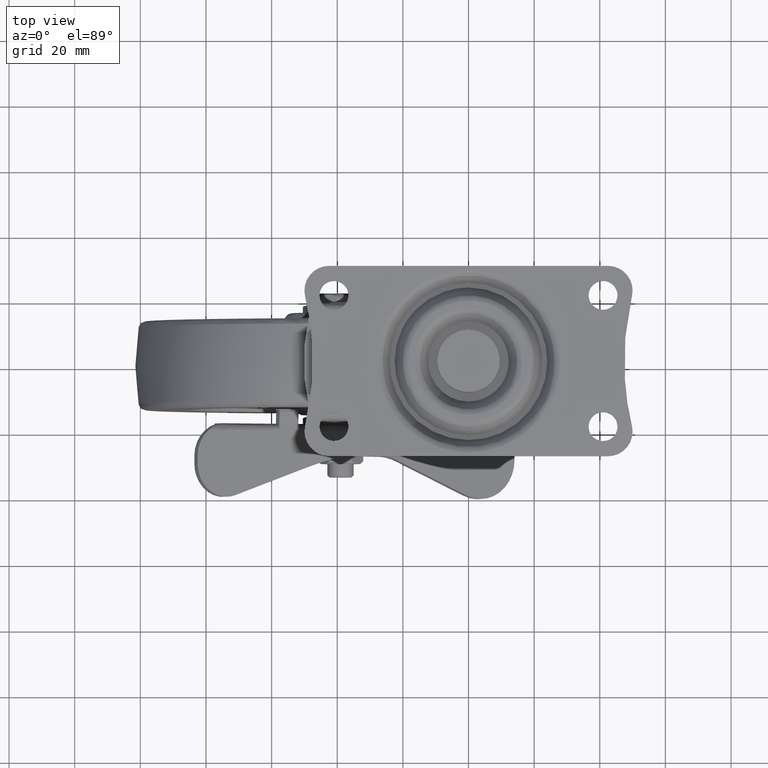
[diagram: clean part render]
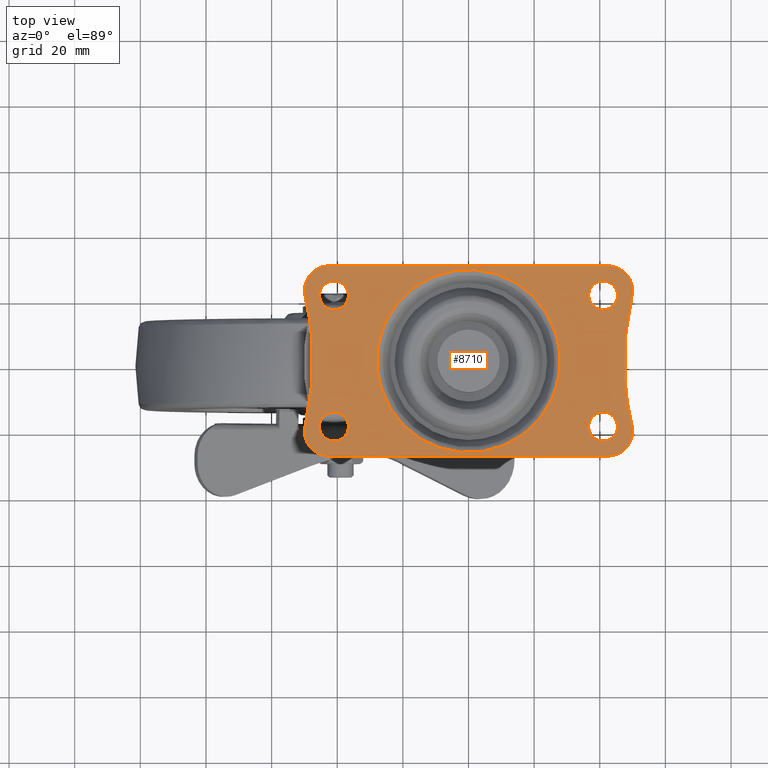
[diagram: same view with one face highlighted and labeled with its STEP entity id]
A machine part, top view. The second image highlights one B-rep face of the part: STEP entity #8710.
In plain terms, the highlighted face is a freeform B-spline surface patch.
Its self-contained STEP definition (entity closure, byte-faithful):
#6863=CARTESIAN_POINT('',(-44.191646626339647,16.971240765977491,1.999999999968882));
#6864=VERTEX_POINT('',#6863);
#6865=CARTESIAN_POINT('',(-40.999995359596333,15.599999900002450,2.0));
#6866=VERTEX_POINT('',#6865);
#6867=CARTESIAN_POINT('',(-44.191646626339647,16.971240765977491,1.999999999968882));
#6868=CARTESIAN_POINT('',(-43.961235314722451,16.728365491330809,1.999999999971126));
#6869=CARTESIAN_POINT('',(-43.415969586831231,16.271503236172990,1.999999999976445));
#6870=CARTESIAN_POINT('',(-42.338951381846186,15.742523104143819,1.999999999986951));
#6871=CARTESIAN_POINT('',(-41.483611512215937,15.599680009546010,1.999999999995282));
#6872=CARTESIAN_POINT('',(-40.999995359596333,15.599999900002450,2.0));
#6873=B_SPLINE_CURVE_WITH_KNOTS('',3,(#6867,#6868,#6869,#6870,#6871,#6872),.UNSPECIFIED.,.F.,.U.,(4,1,1,4),(0.000000129538949,1.004362962533802,2.120273938149728,3.571043816610418),.UNSPECIFIED.);
#6874=EDGE_CURVE('',#6864,#6866,#6873,.T.);
#6876=CARTESIAN_POINT('',(-36.599999900000000,20.0,2.0));
#6877=VERTEX_POINT('',#6876);
#6878=CARTESIAN_POINT('',(-40.999995359596333,15.599999900002450,2.0));
#6879=CARTESIAN_POINT('',(-40.423922617766792,15.599331991319540,2.000000000000008));
#6880=CARTESIAN_POINT('',(-39.524484246894261,15.779375252450720,1.999999999999987));
#6881=CARTESIAN_POINT('',(-38.540924791815407,16.320911521973748,2.000000000000016));
#6882=CARTESIAN_POINT('',(-37.843375976581221,16.893370175453480,1.999999999999981));
#6883=CARTESIAN_POINT('',(-37.198973422651846,17.678282236987311,2.000000000000022));
#6884=CARTESIAN_POINT('',(-36.712441952868318,18.776124843531910,1.999999999999999));
#6885=CARTESIAN_POINT('',(-36.599883324859860,19.604031389509959,2.000000000000001));
#6886=CARTESIAN_POINT('',(-36.599999900000000,20.0,2.0));
#6887=B_SPLINE_CURVE_WITH_KNOTS('',3,(#6878,#6879,#6880,#6881,#6882,#6883,#6884,#6885,#6886),.UNSPECIFIED.,.F.,.U.,(4,1,1,1,1,1,4),(0.000000460146259,1.727919049664438,2.699934183085161,3.347906009620093,4.427776727025464,5.723763383410947,6.911674816714598),.UNSPECIFIED.);
#6888=EDGE_CURVE('',#6866,#6877,#6887,.T.);
#6890=CARTESIAN_POINT('',(-37.808353373660353,23.028759234022509,1.999999999968882));
#6891=VERTEX_POINT('',#6890);
#6892=CARTESIAN_POINT('',(-36.599999900000000,20.0,2.0));
#6893=CARTESIAN_POINT('',(-36.599660215936602,20.522020335984472,1.999999999994639));
#6894=CARTESIAN_POINT('',(-36.800517970858103,21.635222263782779,1.999999999983197));
#6895=CARTESIAN_POINT('',(-37.400599769860648,22.600071287989550,1.999999999973289));
#6896=CARTESIAN_POINT('',(-37.808353373660353,23.028759234022509,1.999999999968882));
#6897=B_SPLINE_CURVE_WITH_KNOTS('',3,(#6892,#6893,#6894,#6895,#6896),.UNSPECIFIED.,.F.,.U.,(4,1,4),(0.000000125255836,1.565958961991485,3.340637922588658),.UNSPECIFIED.);
#6898=EDGE_CURVE('',#6877,#6891,#6897,.T.);
#6967=CARTESIAN_POINT('',(-45.400000100000007,20.0,2.0));
#6968=VERTEX_POINT('',#6967);
#6969=CARTESIAN_POINT('',(-45.400000100000007,20.0,2.0));
#6970=CARTESIAN_POINT('',(-45.400221511531832,19.547603577149410,1.999999999995352));
#6971=CARTESIAN_POINT('',(-45.275474447805280,18.747380211655621,1.999999999987130));
#6972=CARTESIAN_POINT('',(-44.810909382234570,17.726764749346529,1.999999999976644));
#6973=CARTESIAN_POINT('',(-44.407265641416863,17.198380396016809,1.999999999971214));
#6974=CARTESIAN_POINT('',(-44.191646626339647,16.971240765977491,1.999999999968882));
#6975=B_SPLINE_CURVE_WITH_KNOTS('',3,(#6969,#6970,#6971,#6972,#6973,#6974),.UNSPECIFIED.,.F.,.U.,(4,1,1,4),(0.000000125255855,1.357158161508154,2.401079657008411,3.340637922588672),.UNSPECIFIED.);
#6976=EDGE_CURVE('',#6968,#6864,#6975,.T.);
#7012=CARTESIAN_POINT('',(-41.000004640403688,24.400000099997548,2.0));
#7013=VERTEX_POINT('',#7012);
#7014=CARTESIAN_POINT('',(-37.808353373660353,23.028759234022509,1.999999999968882));
#7015=CARTESIAN_POINT('',(-38.243109330103223,23.488136943758889,1.999999999973118));
#7016=CARTESIAN_POINT('',(-39.252078322513412,24.170421980182098,1.999999999982962));
#7017=CARTESIAN_POINT('',(-40.441962493426288,24.400525060441819,1.999999999994558));
#7018=CARTESIAN_POINT('',(-41.000004640403688,24.400000099997548,2.0));
#7019=B_SPLINE_CURVE_WITH_KNOTS('',3,(#7014,#7015,#7016,#7017,#7018),.UNSPECIFIED.,.F.,.U.,(4,1,4),(0.000000129538670,1.897087739368949,3.571043816610434),.UNSPECIFIED.);
#7020=EDGE_CURVE('',#6891,#7013,#7019,.T.);
#7022=CARTESIAN_POINT('',(-41.000004640403688,24.400000099997548,2.0));
#7023=CARTESIAN_POINT('',(-41.576048479000022,24.400591435463319,1.999999999999997));
#7024=CARTESIAN_POINT('',(-42.547524523635659,24.206347561044382,2.000000000000003));
#7025=CARTESIAN_POINT('',(-43.645874076096632,23.565954302906182,1.999999999999997));
#7026=CARTESIAN_POINT('',(-44.484332436499407,22.767891996985220,2.000000000000004));
#7027=CARTESIAN_POINT('',(-45.192012298299922,21.619583956057610,1.999999999999989));
#7028=CARTESIAN_POINT('',(-45.400609845654081,20.576025958989351,2.000000000000009));
#7029=CARTESIAN_POINT('',(-45.400000100000007,20.0,2.0));
#7030=B_SPLINE_CURVE_WITH_KNOTS('',3,(#7022,#7023,#7024,#7025,#7026,#7027,#7028,#7029),.UNSPECIFIED.,.F.,.U.,(4,1,1,1,1,4),(0.000000460136149,1.727919049657275,2.915873930165517,3.779741512302285,5.183756225166462,6.911674816714668),.UNSPECIFIED.);
#7031=EDGE_CURVE('',#7013,#6968,#7030,.T.);
#7054=CARTESIAN_POINT('',(-44.191646626339647,-23.028759234022509,1.999999999968882));
#7055=VERTEX_POINT('',#7054);
#7056=CARTESIAN_POINT('',(-40.999995359596340,-24.400000099997548,2.0));
#7057=VERTEX_POINT('',#7056);
#7058=CARTESIAN_POINT('',(-44.191646626339647,-23.028759234022509,1.999999999968882));
#7059=CARTESIAN_POINT('',(-43.910077149045343,-23.325659288548412,1.999999999971626));
#7060=CARTESIAN_POINT('',(-43.292735522749354,-23.816610649248020,1.999999999977649));
#7061=CARTESIAN_POINT('',(-42.190242142628513,-24.290255093360120,1.999999999988392));
#7062=CARTESIAN_POINT('',(-41.409191854867558,-24.400155614364241,1.999999999996015));
#7063=CARTESIAN_POINT('',(-40.999995359596340,-24.400000099997548,2.0));
#7064=B_SPLINE_CURVE_WITH_KNOTS('',3,(#7058,#7059,#7060,#7061,#7062,#7063),.UNSPECIFIED.,.F.,.U.,(4,1,1,4),(0.000000129539464,1.227551161257772,2.343492784761684,3.571043816610414),.UNSPECIFIED.);
#7065=EDGE_CURVE('',#7055,#7057,#7064,.T.);
#7067=CARTESIAN_POINT('',(-36.599999900000000,-20.0,2.0));
#7068=VERTEX_POINT('',#7067);
#7069=CARTESIAN_POINT('',(-40.999995359596340,-24.400000099997548,2.0));
#7070=CARTESIAN_POINT('',(-40.604020143094132,-24.400141248669190,2.0));
#7071=CARTESIAN_POINT('',(-39.848166653534307,-24.297212129517298,2.0));
#7072=CARTESIAN_POINT('',(-38.675172635750457,-23.811736003103078,2.000000000000002));
#7073=CARTESIAN_POINT('',(-37.771588425417228,-23.070165803609541,1.999999999999998));
#7074=CARTESIAN_POINT('',(-37.167829671779259,-22.212299670192198,2.000000000000004));
#7075=CARTESIAN_POINT('',(-36.731366590510639,-21.259710259592190,1.999999999999993));
#7076=CARTESIAN_POINT('',(-36.599619817956643,-20.504027489536021,1.999999999999997));
#7077=CARTESIAN_POINT('',(-36.599999900000000,-20.0,2.0));
#7078=B_SPLINE_CURVE_WITH_KNOTS('',3,(#7069,#7070,#7071,#7072,#7073,#7074,#7075,#7076,#7077),.UNSPECIFIED.,.F.,.U.,(4,1,1,1,1,1,4),(0.000000460142762,1.187911892418697,2.267926207293846,3.779741512305171,4.643749068792261,5.399748950830405,6.911674816714607),.UNSPECIFIED.);
#7079=EDGE_CURVE('',#7057,#7068,#7078,.T.);
#7081=CARTESIAN_POINT('',(-37.808353373660353,-16.971240765977491,1.999999999968882));
#7082=VERTEX_POINT('',#7081);
#7083=CARTESIAN_POINT('',(-36.599999900000000,-20.0,2.0));
#7084=CARTESIAN_POINT('',(-36.599576135626677,-19.477965254655579,1.999999999994633));
#7085=CARTESIAN_POINT('',(-36.800646102745709,-18.364803885605319,1.999999999983210));
#7086=CARTESIAN_POINT('',(-37.400551592579014,-17.399918039219560,1.999999999973283));
#7087=CARTESIAN_POINT('',(-37.808353373660353,-16.971240765977491,1.999999999968882));
#7088=B_SPLINE_CURVE_WITH_KNOTS('',3,(#7083,#7084,#7085,#7086,#7087),.UNSPECIFIED.,.F.,.U.,(4,1,4),(0.000000125254986,1.565958961991247,3.340637922588661),.UNSPECIFIED.);
#7089=EDGE_CURVE('',#7068,#7082,#7088,.T.);
#7157=CARTESIAN_POINT('',(-45.400000100000007,-20.0,2.0));
#7158=VERTEX_POINT('',#7157);
#7159=CARTESIAN_POINT('',(-45.400000100000007,-20.0,2.0));
#7160=CARTESIAN_POINT('',(-45.400432499681962,-20.522032143060439,1.999999999994634));
#7161=CARTESIAN_POINT('',(-45.199320862115698,-21.635195801872548,1.999999999983205));
#7162=CARTESIAN_POINT('',(-44.599484660652983,-22.600097323028582,1.999999999973283));
#7163=CARTESIAN_POINT('',(-44.191646626339647,-23.028759234022509,1.999999999968882));
#7164=B_SPLINE_CURVE_WITH_KNOTS('',3,(#7159,#7160,#7161,#7162,#7163),.UNSPECIFIED.,.F.,.U.,(4,1,4),(0.000000125256259,1.565958961991748,3.340637922588685),.UNSPECIFIED.);
#7165=EDGE_CURVE('',#7158,#7055,#7164,.T.);
#7200=CARTESIAN_POINT('',(-41.000004640403688,-15.599999900002450,2.0));
#7201=VERTEX_POINT('',#7200);
#7202=CARTESIAN_POINT('',(-37.808353373660353,-16.971240765977491,1.999999999968882));
#7203=CARTESIAN_POINT('',(-38.141064330219997,-16.620284587290652,1.999999999972128));
#7204=CARTESIAN_POINT('',(-38.833370511125651,-16.098020732296909,1.999999999978875));
#7205=CARTESIAN_POINT('',(-39.958501875786901,-15.681015891984201,1.999999999989850));
#7206=CARTESIAN_POINT('',(-40.665226600029420,-15.599945625704761,1.999999999996732));
#7207=CARTESIAN_POINT('',(-41.000004640403688,-15.599999900002450,2.0));
#7208=B_SPLINE_CURVE_WITH_KNOTS('',3,(#7202,#7203,#7204,#7205,#7206,#7207),.UNSPECIFIED.,.F.,.U.,(4,1,1,4),(0.000000129539557,1.450770007751548,2.566680983419448,3.571043816610432),.UNSPECIFIED.);
#7209=EDGE_CURVE('',#7082,#7201,#7208,.T.);
#7211=CARTESIAN_POINT('',(-41.000004640403688,-15.599999900002450,2.0));
#7212=CARTESIAN_POINT('',(-41.395974270479172,-15.599880437681239,2.000000000000003));
#7213=CARTESIAN_POINT('',(-42.223858273781268,-15.712479572827011,1.999999999999998));
#7214=CARTESIAN_POINT('',(-43.454966348116173,-16.257781026952081,2.000000000000004));
#7215=CARTESIAN_POINT('',(-44.402190152291539,-17.116555064008349,2.0));
#7216=CARTESIAN_POINT('',(-45.181170020417227,-18.380904636055220,1.999999999999995));
#7217=CARTESIAN_POINT('',(-45.401080787029940,-19.351803799562941,1.999999999999994));
#7218=CARTESIAN_POINT('',(-45.400000100000007,-20.0,2.0));
#7219=B_SPLINE_CURVE_WITH_KNOTS('',3,(#7211,#7212,#7213,#7214,#7215,#7216,#7217,#7218),.UNSPECIFIED.,.F.,.U.,(4,1,1,1,1,4),(0.000000460144575,1.187911892420241,2.483898544749976,3.995801355097980,4.967763505593855,6.911674816714586),.UNSPECIFIED.);
#7220=EDGE_CURVE('',#7201,#7158,#7219,.T.);
#7243=CARTESIAN_POINT('',(37.808353373660353,16.971240765977491,1.999999999968882));
#7244=VERTEX_POINT('',#7243);
#7245=CARTESIAN_POINT('',(41.000004640403667,15.599999900002450,2.0));
#7246=VERTEX_POINT('',#7245);
#7247=CARTESIAN_POINT('',(37.808353373660353,16.971240765977491,1.999999999968882));
#7248=CARTESIAN_POINT('',(38.089903390340332,16.674310180703589,1.999999999971627));
#7249=CARTESIAN_POINT('',(38.648500170168887,16.230226123371409,1.999999999977074));
#7250=CARTESIAN_POINT('',(39.735461967824833,15.730147709289220,1.999999999987672));
#7251=CARTESIAN_POINT('',(40.516378279823797,15.599685612556080,1.999999999995286));
#7252=CARTESIAN_POINT('',(41.000004640403667,15.599999900002450,2.0));
#7253=B_SPLINE_CURVE_WITH_KNOTS('',3,(#7247,#7248,#7249,#7250,#7251,#7252),.UNSPECIFIED.,.F.,.U.,(4,1,1,4),(0.000000129538852,1.227551161257483,2.120273938149941,3.571043816610426),.UNSPECIFIED.);
#7254=EDGE_CURVE('',#7244,#7246,#7253,.T.);
#7256=CARTESIAN_POINT('',(45.400000100000007,20.0,2.0));
#7257=VERTEX_POINT('',#7256);
#7258=CARTESIAN_POINT('',(41.000004640403667,15.599999900002450,2.0));
#7259=CARTESIAN_POINT('',(41.576071845699140,15.599392930738150,2.000000000000001));
#7260=CARTESIAN_POINT('',(42.475490195610213,15.779346738342420,2.0));
#7261=CARTESIAN_POINT('',(43.713067453243497,16.460453464487539,1.999999999999999));
#7262=CARTESIAN_POINT('',(44.487938650094037,17.235221887885370,2.000000000000003));
#7263=CARTESIAN_POINT('',(45.197463393300161,18.452864674061370,1.999999999999996));
#7264=CARTESIAN_POINT('',(45.401053393963537,19.351784646075320,2.0));
#7265=CARTESIAN_POINT('',(45.400000100000007,20.0,2.0));
#7266=B_SPLINE_CURVE_WITH_KNOTS('',3,(#7258,#7259,#7260,#7261,#7262,#7263,#7264,#7265),.UNSPECIFIED.,.F.,.U.,(4,1,1,1,1,4),(0.000000460139980,1.727919049659939,2.699934183081793,4.211741092349952,4.967763505592465,6.911674816714671),.UNSPECIFIED.);
#7267=EDGE_CURVE('',#7246,#7257,#7266,.T.);
#7269=CARTESIAN_POINT('',(44.191646626339647,23.028759234022509,1.999999999968882));
#7270=VERTEX_POINT('',#7269);
#7271=CARTESIAN_POINT('',(45.400000100000007,20.0,2.0));
#7272=CARTESIAN_POINT('',(45.400700293458797,20.591649134151741,1.999999999993928));
#7273=CARTESIAN_POINT('',(45.171770642672449,21.704557294880662,1.999999999982478));
#7274=CARTESIAN_POINT('',(44.551254220040121,22.650351881443399,1.999999999972773));
#7275=CARTESIAN_POINT('',(44.191646626339647,23.028759234022509,1.999999999968882));
#7276=B_SPLINE_CURVE_WITH_KNOTS('',3,(#7271,#7272,#7273,#7274,#7275),.UNSPECIFIED.,.F.,.U.,(4,1,4),(0.000000125256034,1.774679085938028,3.340637922588673),.UNSPECIFIED.);
#7277=EDGE_CURVE('',#7257,#7270,#7276,.T.);
#7345=CARTESIAN_POINT('',(36.599999900000000,20.0,2.0));
#7346=VERTEX_POINT('',#7345);
#7347=CARTESIAN_POINT('',(36.599999900000000,20.0,2.0));
#7348=CARTESIAN_POINT('',(36.599627666632891,19.477975029782311,1.999999999994643));
#7349=CARTESIAN_POINT('',(36.800564976584887,18.364787167086831,1.999999999983188));
#7350=CARTESIAN_POINT('',(37.400581938989632,17.399922938285702,1.999999999973296));
#7351=CARTESIAN_POINT('',(37.808353373660353,16.971240765977491,1.999999999968882));
#7352=B_SPLINE_CURVE_WITH_KNOTS('',3,(#7347,#7348,#7349,#7350,#7351),.UNSPECIFIED.,.F.,.U.,(4,1,4),(0.000000125256040,1.565958961991678,3.340637922588660),.UNSPECIFIED.);
#7353=EDGE_CURVE('',#7346,#7244,#7352,.T.);
#7389=CARTESIAN_POINT('',(40.999995359596319,24.400000099997548,2.0));
#7390=VERTEX_POINT('',#7389);
#7391=CARTESIAN_POINT('',(44.191646626339647,23.028759234022509,1.999999999968882));
#7392=CARTESIAN_POINT('',(43.858972200137437,23.379793116424430,1.999999999972127));
#7393=CARTESIAN_POINT('',(43.226780187222730,23.856419398200231,1.999999999978286));
#7394=CARTESIAN_POINT('',(42.115836255245611,24.300690841448649,1.999999999989125));
#7395=CARTESIAN_POINT('',(41.409180820228762,24.400135621187751,1.999999999996009));
#7396=CARTESIAN_POINT('',(40.999995359596319,24.400000099997548,2.0));
#7397=B_SPLINE_CURVE_WITH_KNOTS('',3,(#7391,#7392,#7393,#7394,#7395,#7396),.UNSPECIFIED.,.F.,.U.,(4,1,1,4),(0.000000129538840,1.450770007751356,2.343492784761530,3.571043816610422),.UNSPECIFIED.);
#7398=EDGE_CURVE('',#7270,#7390,#7397,.T.);
#7400=CARTESIAN_POINT('',(40.999995359596319,24.400000099997548,2.0));
#7401=CARTESIAN_POINT('',(40.423978668905541,24.400583771724019,2.000000000000003));
#7402=CARTESIAN_POINT('',(39.380394549340977,24.192064626751570,1.999999999999998));
#7403=CARTESIAN_POINT('',(38.232097932742668,23.484310206190919,2.000000000000003));
#7404=CARTESIAN_POINT('',(37.508912970643749,22.724439651086140,2.000000000000001));
#7405=CARTESIAN_POINT('',(37.005724400227187,21.929939783692880,2.000000000000003));
#7406=CARTESIAN_POINT('',(36.675824698283897,21.007927131696270,1.999999999999998));
#7407=CARTESIAN_POINT('',(36.599955471449107,20.323972178975229,2.0));
#7408=CARTESIAN_POINT('',(36.599999900000000,20.0,2.0));
#7409=B_SPLINE_CURVE_WITH_KNOTS('',3,(#7400,#7401,#7402,#7403,#7404,#7405,#7406,#7407,#7408),.UNSPECIFIED.,.F.,.U.,(4,1,1,1,1,1,4),(0.000000460141826,1.727919049661032,3.131933760528388,3.995801355096208,4.859759915722637,5.939735721905261,6.911674816714625),.UNSPECIFIED.);
#7410=EDGE_CURVE('',#7390,#7346,#7409,.T.);
#7433=CARTESIAN_POINT('',(37.808353373660353,-23.028759234022509,1.999999999968882));
#7434=VERTEX_POINT('',#7433);
#7435=CARTESIAN_POINT('',(41.000004640403667,-24.400000099997548,2.0));
#7436=VERTEX_POINT('',#7435);
#7437=CARTESIAN_POINT('',(37.808353373660353,-23.028759234022509,1.999999999968882));
#7438=CARTESIAN_POINT('',(38.192102529284107,-23.433911584171380,1.999999999972626));
#7439=CARTESIAN_POINT('',(39.178077086375907,-24.138627428111668,1.999999999982232));
#7440=CARTESIAN_POINT('',(40.367517116680851,-24.400853777735659,1.999999999993834));
#7441=CARTESIAN_POINT('',(41.000004640403667,-24.400000099997548,2.0));
#7442=B_SPLINE_CURVE_WITH_KNOTS('',3,(#7437,#7438,#7439,#7440,#7441),.UNSPECIFIED.,.F.,.U.,(4,1,4),(0.000000129537069,1.673956206783090,3.571043816610411),.UNSPECIFIED.);
#7443=EDGE_CURVE('',#7434,#7436,#7442,.T.);
#7445=CARTESIAN_POINT('',(45.400000100000007,-20.0,2.0));
#7446=VERTEX_POINT('',#7445);
#7447=CARTESIAN_POINT('',(41.000004640403667,-24.400000099997548,2.0));
#7448=CARTESIAN_POINT('',(41.648123677211238,-24.400988490607158,1.999999999999999));
#7449=CARTESIAN_POINT('',(42.763170850110697,-24.148829918783129,2.000000000000004));
#7450=CARTESIAN_POINT('',(44.116055380937432,-23.220651284664559,1.999999999999994));
#7451=CARTESIAN_POINT('',(44.921228312130822,-22.134967331738430,2.000000000000012));
#7452=CARTESIAN_POINT('',(45.324128686437717,-21.007898973175980,1.999999999999994));
#7453=CARTESIAN_POINT('',(45.400045079172862,-20.323971836244990,2.000000000000001));
#7454=CARTESIAN_POINT('',(45.400000100000007,-20.0,2.0));
#7455=B_SPLINE_CURVE_WITH_KNOTS('',3,(#7447,#7448,#7449,#7450,#7451,#7452,#7453,#7454),.UNSPECIFIED.,.F.,.U.,(4,1,1,1,1,4),(0.000000460140767,1.943911772386969,3.347906009618380,4.859759915722920,5.939735721905360,6.911674816714633),.UNSPECIFIED.);
#7456=EDGE_CURVE('',#7436,#7446,#7455,.T.);
#7458=CARTESIAN_POINT('',(44.191646626339647,-16.971240765977491,1.999999999968882));
#7459=VERTEX_POINT('',#7458);
#7460=CARTESIAN_POINT('',(45.400000100000007,-20.0,2.0));
#7461=CARTESIAN_POINT('',(45.400221511531832,-19.547603577149410,1.999999999995352));
#7462=CARTESIAN_POINT('',(45.275474447805280,-18.747380211655621,1.999999999987130));
#7463=CARTESIAN_POINT('',(44.810909382234570,-17.726764749346529,1.999999999976644));
#7464=CARTESIAN_POINT('',(44.407265641416863,-17.198380396016809,1.999999999971214));
#7465=CARTESIAN_POINT('',(44.191646626339647,-16.971240765977491,1.999999999968882));
#7466=B_SPLINE_CURVE_WITH_KNOTS('',3,(#7460,#7461,#7462,#7463,#7464,#7465),.UNSPECIFIED.,.F.,.U.,(4,1,1,4),(0.000000125255855,1.357158161508154,2.401079657008411,3.340637922588672),.UNSPECIFIED.);
#7467=EDGE_CURVE('',#7446,#7459,#7466,.T.);
#7536=CARTESIAN_POINT('',(36.599999900000000,-20.0,2.0));
#7537=VERTEX_POINT('',#7536);
#7538=CARTESIAN_POINT('',(36.599999900000000,-20.0,2.0));
#7539=CARTESIAN_POINT('',(36.599626234465632,-20.522024989662292,1.999999999994637));
#7540=CARTESIAN_POINT('',(36.800570956135452,-21.635210740184871,1.999999999983199));
#7541=CARTESIAN_POINT('',(37.400575973367168,-22.600078543154741,1.999999999973285));
#7542=CARTESIAN_POINT('',(37.808353373660353,-23.028759234022509,1.999999999968882));
#7543=B_SPLINE_CURVE_WITH_KNOTS('',3,(#7538,#7539,#7540,#7541,#7542),.UNSPECIFIED.,.F.,.U.,(4,1,4),(0.000000125256005,1.565958961991572,3.340637922588661),.UNSPECIFIED.);
#7544=EDGE_CURVE('',#7537,#7434,#7543,.T.);
#7581=CARTESIAN_POINT('',(40.999995359596319,-15.599999900002450,2.0));
#7582=VERTEX_POINT('',#7581);
#7583=CARTESIAN_POINT('',(44.191646626339647,-16.971240765977491,1.999999999968882));
#7584=CARTESIAN_POINT('',(43.858973415516793,-16.620209135255099,1.999999999972124));
#7585=CARTESIAN_POINT('',(43.226778453453129,-16.143579393390649,1.999999999978288));
#7586=CARTESIAN_POINT('',(42.115837928755703,-15.699309772077729,1.999999999989122));
#7587=CARTESIAN_POINT('',(41.409180681295702,-15.599863927600151,1.999999999996006));
#7588=CARTESIAN_POINT('',(40.999995359596319,-15.599999900002450,2.0));
#7589=B_SPLINE_CURVE_WITH_KNOTS('',3,(#7583,#7584,#7585,#7586,#7587,#7588),.UNSPECIFIED.,.F.,.U.,(4,1,1,4),(0.000000129539970,1.450770007751691,2.343492784761506,3.571043816610433),.UNSPECIFIED.);
#7590=EDGE_CURVE('',#7459,#7582,#7589,.T.);
#7592=CARTESIAN_POINT('',(40.999995359596319,-15.599999900002450,2.0));
#7593=CARTESIAN_POINT('',(40.423951478536459,-15.599408615135969,1.999999999999999));
#7594=CARTESIAN_POINT('',(39.452477614056797,-15.793653630632880,1.999999999999996));
#7595=CARTESIAN_POINT('',(38.354104119643608,-16.434031547259679,2.000000000000005));
#7596=CARTESIAN_POINT('',(37.646825062802243,-17.107493281210111,1.999999999999996));
#7597=CARTESIAN_POINT('',(37.105233030811107,-17.876360768414720,2.000000000000008));
#7598=CARTESIAN_POINT('',(36.702745581016842,-18.848143149498920,1.999999999999988));
#7599=CARTESIAN_POINT('',(36.599860208432617,-19.604022269564911,1.999999999999997));
#7600=CARTESIAN_POINT('',(36.599999900000000,-20.0,2.0));
#7601=B_SPLINE_CURVE_WITH_KNOTS('',3,(#7592,#7593,#7594,#7595,#7596,#7597,#7598,#7599,#7600),.UNSPECIFIED.,.F.,.U.,(4,1,1,1,1,1,4),(0.000000460140508,1.727919049660281,2.915873930167523,3.779741512303496,4.643749068790889,5.723763383409952,6.911674816714657),.UNSPECIFIED.);
#7602=EDGE_CURVE('',#7582,#7537,#7601,.T.);
#8335=CARTESIAN_POINT('',(-49.794594143545098,-19.756756964460099,2.0));
#8336=VERTEX_POINT('',#8335);
#8337=CARTESIAN_POINT('',(-42.500000000000000,-29.000003000000000,2.0));
#8338=VERTEX_POINT('',#8337);
#8339=CARTESIAN_POINT('',(-49.794594143545098,-19.756756964460099,2.0));
#8340=CARTESIAN_POINT('',(-50.008426030185532,-20.648379312075370,2.0));
#8341=CARTESIAN_POINT('',(-50.080710497446802,-22.080689071763668,2.000000000000002));
#8342=CARTESIAN_POINT('',(-49.683001503118973,-23.770848631729471,1.999999999999999));
#8343=CARTESIAN_POINT('',(-49.182332140942641,-24.978510238741730,1.999999999999991));
#8344=CARTESIAN_POINT('',(-48.547214781352061,-26.002202124651401,2.000000000000006));
#8345=CARTESIAN_POINT('',(-47.625730556793137,-27.028525712624440,1.999999999999982));
#8346=CARTESIAN_POINT('',(-46.341225653043097,-28.032013722949149,1.999999999999996));
#8347=CARTESIAN_POINT('',(-44.580365202660403,-28.809840257428540,2.000000000000027));
#8348=CARTESIAN_POINT('',(-43.169954774701623,-29.000195527274681,1.999999999999987));
#8349=CARTESIAN_POINT('',(-42.500000000000000,-29.000003000000000,2.0));
#8350=B_SPLINE_CURVE_WITH_KNOTS('',3,(#8339,#8340,#8341,#8342,#8343,#8344,#8345,#8346,#8347,#8348,#8349),.UNSPECIFIED.,.F.,.U.,(4,1,1,1,1,1,1,1,4),(0.000000457877729,2.750377624642004,4.231411683680104,5.183461277386959,6.664529923529672,7.828037936574070,9.309012245038407,11.530562015397170,13.540420483248189),.UNSPECIFIED.);
#8351=EDGE_CURVE('',#8336,#8338,#8350,.T.);
#8372=CARTESIAN_POINT('',(42.500002617993950,-28.999999999999549,2.0));
#8373=VERTEX_POINT('',#8372);
#8374=CARTESIAN_POINT('',(42.500002617993950,-28.999999999999549,2.0));
#8375=CARTESIAN_POINT('',(-42.500000000000000,-29.000003000000000,2.0));
#8376=QUASI_UNIFORM_CURVE('',1,(#8374,#8375),.UNSPECIFIED.,.F.,.U.);
#8377=EDGE_CURVE('',#8373,#8338,#8376,.T.);
#8403=CARTESIAN_POINT('',(49.794594135559400,-19.756756931044251,2.0));
#8404=VERTEX_POINT('',#8403);
#8405=CARTESIAN_POINT('',(42.500002617993950,-28.999999999999549,2.0));
#8406=CARTESIAN_POINT('',(43.099427308018740,-29.000051292473401,2.0));
#8407=CARTESIAN_POINT('',(44.474665492413251,-28.834564958611441,2.0));
#8408=CARTESIAN_POINT('',(46.418199215892251,-28.024575187710791,2.000000000000004));
#8409=CARTESIAN_POINT('',(47.982193902754190,-26.730454170125451,1.999999999999989));
#8410=CARTESIAN_POINT('',(49.156677663583771,-25.129232800764260,2.000000000000010));
#8411=CARTESIAN_POINT('',(49.882238883005762,-23.307713674940160,2.0));
#8412=CARTESIAN_POINT('',(50.067805381465398,-21.395406490061681,1.999999999999986));
#8413=CARTESIAN_POINT('',(49.909348503323862,-20.236859941251488,1.999999999999992));
#8414=CARTESIAN_POINT('',(49.794594135559400,-19.756756931044251,2.0));
#8415=B_SPLINE_CURVE_WITH_KNOTS('',3,(#8405,#8406,#8407,#8408,#8409,#8410,#8411,#8412,#8413,#8414),.UNSPECIFIED.,.F.,.U.,(4,1,1,1,1,1,1,4),(0.000000457906797,1.798322660927772,4.125598404548411,6.241309335060558,7.828035268885987,10.049524033713469,12.059500314839960,13.540415868839030),.UNSPECIFIED.);
#8416=EDGE_CURVE('',#8373,#8404,#8415,.T.);
#8442=CARTESIAN_POINT('',(49.794603130326699,19.756754781498149,2.0));
#8443=VERTEX_POINT('',#8442);
#8444=CARTESIAN_POINT('',(49.794603130326699,19.756754781498149,2.0));
#8445=CARTESIAN_POINT('',(48.490452313699890,14.302592908421490,2.000000000000007));
#8446=CARTESIAN_POINT('',(47.122937998146973,4.272563506448646,1.999999999999999));
#8447=CARTESIAN_POINT('',(47.685046849204241,-9.049618794996789,2.0));
#8448=CARTESIAN_POINT('',(49.046283158136617,-16.625603518368351,1.999999999999988));
#8449=CARTESIAN_POINT('',(49.794594135559400,-19.756756931044251,2.0));
#8450=B_SPLINE_CURVE_WITH_KNOTS('',3,(#8444,#8445,#8446,#8447,#8448,#8449),.UNSPECIFIED.,.F.,.U.,(4,1,1,4),(8.866039E-009,16.823651460457700,30.220242064544220,39.878257439422917),.UNSPECIFIED.);
#8451=EDGE_CURVE('',#8443,#8404,#8450,.T.);
#8477=CARTESIAN_POINT('',(42.500000000000000,29.0,2.0));
#8478=VERTEX_POINT('',#8477);
#8479=CARTESIAN_POINT('',(49.794603130326699,19.756754781498149,2.0));
#8480=CARTESIAN_POINT('',(49.975342035311293,20.511209091109350,1.999999999999999));
#8481=CARTESIAN_POINT('',(50.079371412229627,21.827475988716849,2.000000000000003));
#8482=CARTESIAN_POINT('',(49.765660832630658,23.536426214694291,1.999999999999999));
#8483=CARTESIAN_POINT('',(49.199846336819412,24.987032787332041,2.000000000000010));
#8484=CARTESIAN_POINT('',(48.212868069061571,26.505783233729900,1.999999999999975));
#8485=CARTESIAN_POINT('',(46.629099872917578,27.893319425779111,2.000000000000020));
#8486=CARTESIAN_POINT('',(44.615558986228407,28.799589495083602,1.999999999999978));
#8487=CARTESIAN_POINT('',(43.205245357083662,29.000260111159768,2.000000000000034));
#8488=CARTESIAN_POINT('',(42.500000000000000,29.0,2.0));
#8489=B_SPLINE_CURVE_WITH_KNOTS('',3,(#8479,#8480,#8481,#8482,#8483,#8484,#8485,#8486,#8487,#8488),.UNSPECIFIED.,.F.,.U.,(4,1,1,1,1,1,1,4),(0.000000457869668,2.327257331026306,3.914040009460402,5.183462909542753,6.981707231269390,9.309015176328103,11.424738148702390,13.540424746926339),.UNSPECIFIED.);
#8490=EDGE_CURVE('',#8443,#8478,#8489,.T.);
#8507=CARTESIAN_POINT('',(-42.499997643805600,28.999999999999499,2.0));
#8508=VERTEX_POINT('',#8507);
#8509=CARTESIAN_POINT('',(-42.499997643805600,28.999999999999499,2.0));
#8510=CARTESIAN_POINT('',(42.500000000000000,29.0,2.0));
#8511=QUASI_UNIFORM_CURVE('',1,(#8509,#8510),.UNSPECIFIED.,.F.,.U.);
#8512=EDGE_CURVE('',#8508,#8478,#8511,.T.);
#8538=CARTESIAN_POINT('',(-49.794595056304097,19.756760783900798,2.0));
#8539=VERTEX_POINT('',#8538);
#8540=CARTESIAN_POINT('',(-42.499997643805600,28.999999999999499,2.0));
#8541=CARTESIAN_POINT('',(-43.275810074578992,29.000428412056412,1.999999999999995));
#8542=CARTESIAN_POINT('',(-44.368633664138322,28.828847632731840,2.000000000000010));
#8543=CARTESIAN_POINT('',(-45.815875003625358,28.261059170523751,1.999999999999977));
#8544=CARTESIAN_POINT('',(-47.161283610740107,27.475240162372121,2.000000000000076));
#8545=CARTESIAN_POINT('',(-48.307683149073917,26.350782343430730,1.999999999999863));
#8546=CARTESIAN_POINT('',(-49.145903877804720,25.040542178634709,2.000000000000062));
#8547=CARTESIAN_POINT('',(-49.687253472690607,23.809576949717009,1.999999999999945));
#8548=CARTESIAN_POINT('',(-50.084351718043038,22.007463785852849,2.000000000000028));
#8549=CARTESIAN_POINT('',(-49.991818549565650,20.579788604678889,2.000000000000004));
#8550=CARTESIAN_POINT('',(-49.794595056304097,19.756760783900798,2.0));
#8551=B_SPLINE_CURVE_WITH_KNOTS('',3,(#8540,#8541,#8542,#8543,#8544,#8545,#8546,#8547,#8548,#8549,#8550),.UNSPECIFIED.,.F.,.U.,(4,1,1,1,1,1,1,1,4),(0.000000457887239,2.327255979195884,3.279318165483055,4.654526711400246,6.981703175749765,8.039566541999069,9.309009768983955,11.001615767379690,13.540416881705010),.UNSPECIFIED.);
#8552=EDGE_CURVE('',#8508,#8539,#8551,.T.);
#8578=CARTESIAN_POINT('',(-49.794594143545098,-19.756756964460099,2.0));
#8579=CARTESIAN_POINT('',(-48.853061168104098,-15.817581165706001,1.999999999999993));
#8580=CARTESIAN_POINT('',(-47.466777436233080,-7.393416282036227,2.000000000000010));
#8581=CARTESIAN_POINT('',(-47.295826390611722,5.939534562112215,1.999999999999994));
#8582=CARTESIAN_POINT('',(-48.683846936318680,15.110578048883649,2.000000000000004));
#8583=CARTESIAN_POINT('',(-49.794595056304097,19.756760783900798,2.0));
#8584=B_SPLINE_CURVE_WITH_KNOTS('',3,(#8578,#8579,#8580,#8581,#8582,#8583),.UNSPECIFIED.,.F.,.U.,(4,1,1,4),(8.863481E-009,12.150411360364620,25.547001747293368,39.878263961037788),.UNSPECIFIED.);
#8585=EDGE_CURVE('',#8336,#8539,#8584,.T.);
#8593=CARTESIAN_POINT('',(-54.994786870107554,31.897100037434750,2.0));
#8594=CARTESIAN_POINT('',(54.994834299783633,31.897100037434750,2.0));
#8595=CARTESIAN_POINT('',(-54.994786870107554,-31.897104593116051,2.0));
#8596=CARTESIAN_POINT('',(54.994834299783633,-31.897104593116051,2.0));
#8597=B_SPLINE_SURFACE_WITH_KNOTS('',1,1,((#8593,#8595),(#8594,#8596)),.UNSPECIFIED.,.F.,.F.,.U.,(2,2),(2,2),(0.0,109.989621169891190),(0.0,63.794204630550801),.UNSPECIFIED.);
#8598=ORIENTED_EDGE('',*,*,#8585,.F.);
#8599=ORIENTED_EDGE('',*,*,#8351,.T.);
#8600=ORIENTED_EDGE('',*,*,#8377,.F.);
#8601=ORIENTED_EDGE('',*,*,#8416,.T.);
#8602=ORIENTED_EDGE('',*,*,#8451,.F.);
#8603=ORIENTED_EDGE('',*,*,#8490,.T.);
#8604=ORIENTED_EDGE('',*,*,#8512,.F.);
#8605=ORIENTED_EDGE('',*,*,#8552,.T.);
#8606=EDGE_LOOP('',(#8598,#8599,#8600,#8601,#8602,#8603,#8604,#8605));
#8607=FACE_OUTER_BOUND('',#8606,.T.);
#8608=CARTESIAN_POINT('',(-27.889048365125149,-1.421085E-014,2.0));
#8609=VERTEX_POINT('',#8608);
#8610=CARTESIAN_POINT('',(-24.928386694279091,12.504981192950510,2.0));
#8611=VERTEX_POINT('',#8610);
#8612=CARTESIAN_POINT('',(-27.889048365125149,-1.421085E-014,2.0));
#8613=CARTESIAN_POINT('',(-27.889551798332771,2.228764006756545,1.999999999999998));
#8614=CARTESIAN_POINT('',(-27.367948323015131,6.550879140269438,2.000000000000001));
#8615=CARTESIAN_POINT('',(-25.867543662206550,10.633729925819530,1.999999999999999));
#8616=CARTESIAN_POINT('',(-24.928386694279091,12.504981192950510,2.0));
#8617=B_SPLINE_CURVE_WITH_KNOTS('',3,(#8612,#8613,#8614,#8615,#8616),.UNSPECIFIED.,.F.,.U.,(4,1,4),(0.000000016230310,6.686185421693895,12.967200872908510),.UNSPECIFIED.);
#8618=EDGE_CURVE('',#8609,#8611,#8617,.T.);
#8619=ORIENTED_EDGE('',*,*,#8618,.T.);
#8620=CARTESIAN_POINT('',(27.889048365125149,-1.421085E-014,2.0));
#8621=VERTEX_POINT('',#8620);
#8622=CARTESIAN_POINT('',(-24.928386694279091,12.504981192950510,2.0));
#8623=CARTESIAN_POINT('',(-23.882991643198650,14.590442024659881,2.000000000000001));
#8624=CARTESIAN_POINT('',(-21.645989085062102,17.926333571766211,1.999999999999995));
#8625=CARTESIAN_POINT('',(-17.496803261295540,21.917867874477039,2.000000000000012));
#8626=CARTESIAN_POINT('',(-12.932842708298869,24.928272150586309,1.999999999999988));
#8627=CARTESIAN_POINT('',(-8.209156972313604,26.810465023182552,2.000000000000008));
#8628=CARTESIAN_POINT('',(-4.009015371387198,27.667715735469500,1.999999999999998));
#8629=CARTESIAN_POINT('',(-0.322585037312900,27.967711402887840,1.999999999999981));
#8630=CARTESIAN_POINT('',(4.156894629388463,27.746143709425720,2.000000000000030));
#8631=CARTESIAN_POINT('',(8.813540475853765,26.617830517595191,1.999999999999980));
#8632=CARTESIAN_POINT('',(13.359420120096090,24.612279462675868,1.999999999999965));
#8633=CARTESIAN_POINT('',(17.297216922994849,22.075801759432220,2.000000000000039));
#8634=CARTESIAN_POINT('',(20.567042697639302,18.997243771323060,2.000000000000040));
#8635=CARTESIAN_POINT('',(23.026736076060271,15.853299133300119,1.999999999999947));
#8636=CARTESIAN_POINT('',(24.890872332225371,12.769454216383080,2.000000000000032));
#8637=CARTESIAN_POINT('',(26.320842717957220,9.459098811176052,2.000000000000002));
#8638=CARTESIAN_POINT('',(27.545968385546889,5.151356817726820,1.999999999999994));
#8639=CARTESIAN_POINT('',(27.889438864908328,2.041209746794985,2.000000000000032));
#8640=CARTESIAN_POINT('',(27.889048365125149,-1.421085E-014,2.0));
#8641=B_SPLINE_CURVE_WITH_KNOTS('',3,(#8622,#8623,#8624,#8625,#8626,#8627,#8628,#8629,#8630,#8631,#8632,#8633,#8634,#8635,#8636,#8637,#8638,#8639,#8640),.UNSPECIFIED.,.F.,.U.,(4,1,1,1,1,1,1,1,1,1,1,1,1,1,1,1,4),(0.000000204560678,6.998262346272725,11.955471877325250,17.204296687450888,23.327890525027168,27.118666524624150,30.034744526127579,34.408690659021211,40.532139156212139,44.322881881360722,49.280068289872922,54.528893094152892,57.736504643518472,61.235712596163317,65.318137510336172,68.525669170616496,74.649197099493094),.UNSPECIFIED.);
#8642=EDGE_CURVE('',#8611,#8621,#8641,.T.);
#8643=ORIENTED_EDGE('',*,*,#8642,.T.);
#8644=CARTESIAN_POINT('',(24.928386694279091,-12.504981192950540,2.0));
#8645=VERTEX_POINT('',#8644);
#8646=CARTESIAN_POINT('',(27.889048365125149,-1.421085E-014,2.0));
#8647=CARTESIAN_POINT('',(27.889228213195409,-1.823512728756002,2.0));
#8648=CARTESIAN_POINT('',(27.463683560792919,-6.145856339890195,2.0));
#8649=CARTESIAN_POINT('',(26.049696398710228,-10.271686918030850,2.000000000000002));
#8650=CARTESIAN_POINT('',(24.928386694279091,-12.504981192950540,2.0));
#8651=B_SPLINE_CURVE_WITH_KNOTS('',3,(#8646,#8647,#8648,#8649,#8650),.UNSPECIFIED.,.F.,.U.,(4,1,4),(0.000000016230043,5.470540220680305,12.967200872908521),.UNSPECIFIED.);
#8652=EDGE_CURVE('',#8621,#8645,#8651,.T.);
#8653=ORIENTED_EDGE('',*,*,#8652,.T.);
#8654=CARTESIAN_POINT('',(24.928386694279091,-12.504981192950540,2.0));
#8655=CARTESIAN_POINT('',(24.318299175111431,-13.721324778037740,1.999999999999999));
#8656=CARTESIAN_POINT('',(22.919537908521558,-16.064390412699812,2.000000000000002));
#8657=CARTESIAN_POINT('',(19.900247770654300,-19.764372060676120,1.999999999999990));
#8658=CARTESIAN_POINT('',(15.872777651720581,-23.179421270962461,2.000000000000020));
#8659=CARTESIAN_POINT('',(10.713159023223430,-25.959375628904290,1.999999999999967));
#8660=CARTESIAN_POINT('',(5.656381002895879,-27.469884722995779,2.000000000000020));
#8661=CARTESIAN_POINT('',(1.391068984298651,-27.929198690336140,1.999999999999995));
#8662=CARTESIAN_POINT('',(-2.403275053880975,-27.860369282964751,2.000000000000019));
#8663=CARTESIAN_POINT('',(-5.877013922570010,-27.358063080246779,1.999999999999927));
#8664=CARTESIAN_POINT('',(-10.176546128015129,-26.099654034352081,2.000000000000048));
#8665=CARTESIAN_POINT('',(-14.581138088315640,-23.989502417198519,1.999999999999975));
#8666=CARTESIAN_POINT('',(-18.716498069643141,-20.874968710174130,2.000000000000011));
#8667=CARTESIAN_POINT('',(-22.030776308845461,-17.299919569064208,2.000000000000001));
#8668=CARTESIAN_POINT('',(-24.294656553371720,-13.885594519156911,1.999999999999989));
#8669=CARTESIAN_POINT('',(-26.094386942760320,-10.105672083620579,2.000000000000024));
#8670=CARTESIAN_POINT('',(-27.492421119724622,-5.637384225791908,1.999999999999946));
#8671=CARTESIAN_POINT('',(-27.889402780266789,-2.041191975520926,2.000000000000056));
#8672=CARTESIAN_POINT('',(-27.889048365125149,-1.421085E-014,2.0));
#8673=B_SPLINE_CURVE_WITH_KNOTS('',3,(#8654,#8655,#8656,#8657,#8658,#8659,#8660,#8661,#8662,#8663,#8664,#8665,#8666,#8667,#8668,#8669,#8670,#8671,#8672),.UNSPECIFIED.,.F.,.U.,(4,1,1,1,1,1,1,1,1,1,1,1,1,1,1,1,4),(0.000000204572288,4.082324979058384,8.164667605209289,14.288294933773731,19.828700382470149,25.660713054048770,30.034744526134059,32.659153600191729,37.033042186429768,40.532139156216331,46.072465319584602,51.612891316422207,55.986899554030032,60.652486955678853,63.860125683511370,68.525669170616510,74.649197099493023),.UNSPECIFIED.);
#8674=EDGE_CURVE('',#8645,#8609,#8673,.T.);
#8675=ORIENTED_EDGE('',*,*,#8674,.T.);
#8676=EDGE_LOOP('',(#8619,#8643,#8653,#8675));
#8677=FACE_BOUND('',#8676,.T.);
#8678=ORIENTED_EDGE('',*,*,#7079,.F.);
#8679=ORIENTED_EDGE('',*,*,#7065,.F.);
#8680=ORIENTED_EDGE('',*,*,#7165,.F.);
#8681=ORIENTED_EDGE('',*,*,#7220,.F.);
#8682=ORIENTED_EDGE('',*,*,#7209,.F.);
#8683=ORIENTED_EDGE('',*,*,#7089,.F.);
#8684=EDGE_LOOP('',(#8678,#8679,#8680,#8681,#8682,#8683));
#8685=FACE_BOUND('',#8684,.T.);
#8686=ORIENTED_EDGE('',*,*,#7267,.F.);
#8687=ORIENTED_EDGE('',*,*,#7254,.F.);
#8688=ORIENTED_EDGE('',*,*,#7353,.F.);
#8689=ORIENTED_EDGE('',*,*,#7410,.F.);
#8690=ORIENTED_EDGE('',*,*,#7398,.F.);
#8691=ORIENTED_EDGE('',*,*,#7277,.F.);
#8692=EDGE_LOOP('',(#8686,#8687,#8688,#8689,#8690,#8691));
#8693=FACE_BOUND('',#8692,.T.);
#8694=ORIENTED_EDGE('',*,*,#7456,.F.);
#8695=ORIENTED_EDGE('',*,*,#7443,.F.);
#8696=ORIENTED_EDGE('',*,*,#7544,.F.);
#8697=ORIENTED_EDGE('',*,*,#7602,.F.);
#8698=ORIENTED_EDGE('',*,*,#7590,.F.);
#8699=ORIENTED_EDGE('',*,*,#7467,.F.);
#8700=EDGE_LOOP('',(#8694,#8695,#8696,#8697,#8698,#8699));
#8701=FACE_BOUND('',#8700,.T.);
#8702=ORIENTED_EDGE('',*,*,#6888,.F.);
#8703=ORIENTED_EDGE('',*,*,#6874,.F.);
#8704=ORIENTED_EDGE('',*,*,#6976,.F.);
#8705=ORIENTED_EDGE('',*,*,#7031,.F.);
#8706=ORIENTED_EDGE('',*,*,#7020,.F.);
#8707=ORIENTED_EDGE('',*,*,#6898,.F.);
#8708=EDGE_LOOP('',(#8702,#8703,#8704,#8705,#8706,#8707));
#8709=FACE_BOUND('',#8708,.T.);
#8710=ADVANCED_FACE('',(#8607,#8677,#8685,#8693,#8701,#8709),#8597,.F.);